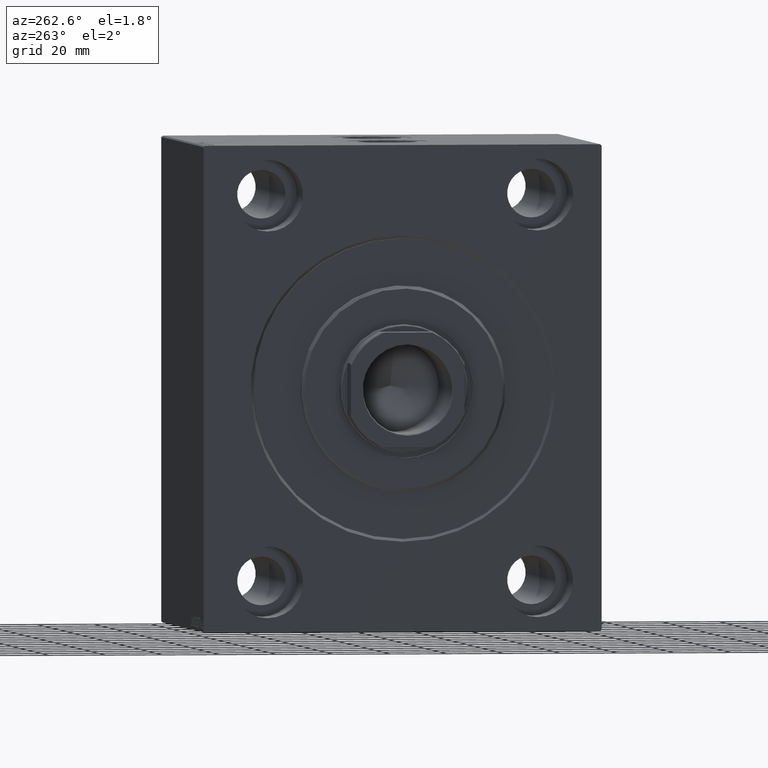
[diagram: clean part render]
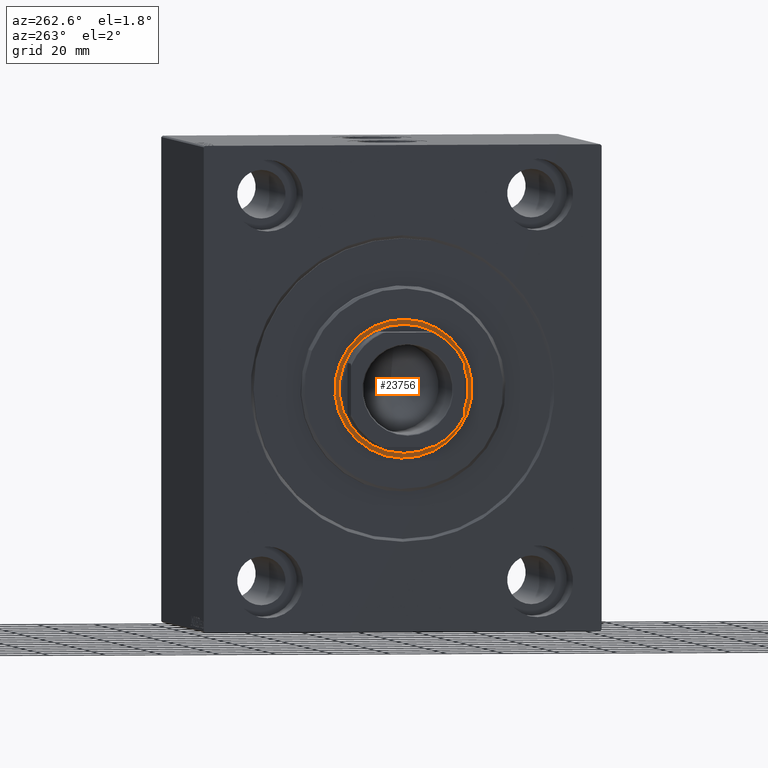
[diagram: same view with one face highlighted and labeled with its STEP entity id]
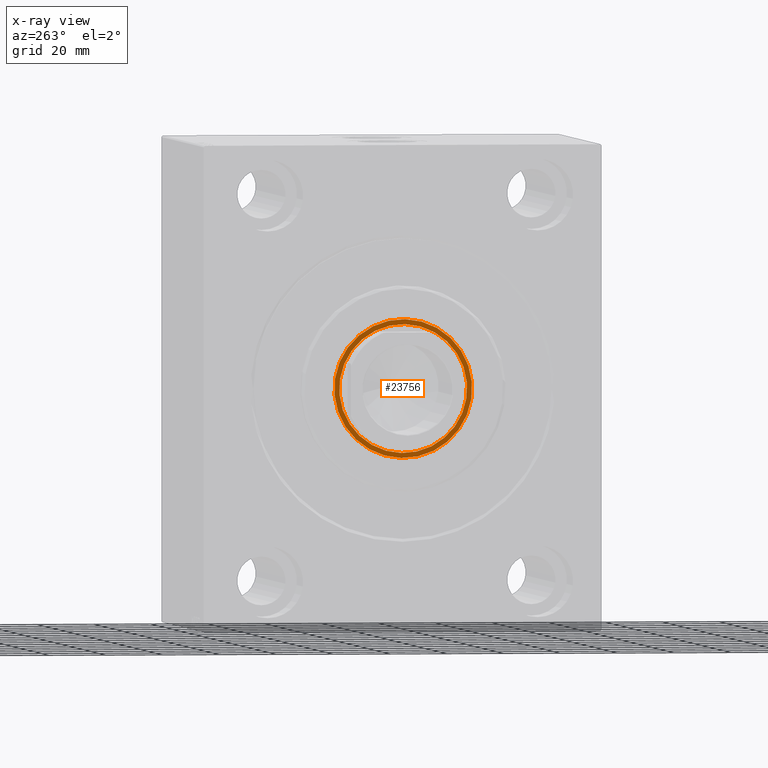
[diagram: x-ray of the same camera — body ghosted, the highlighted face saturated]
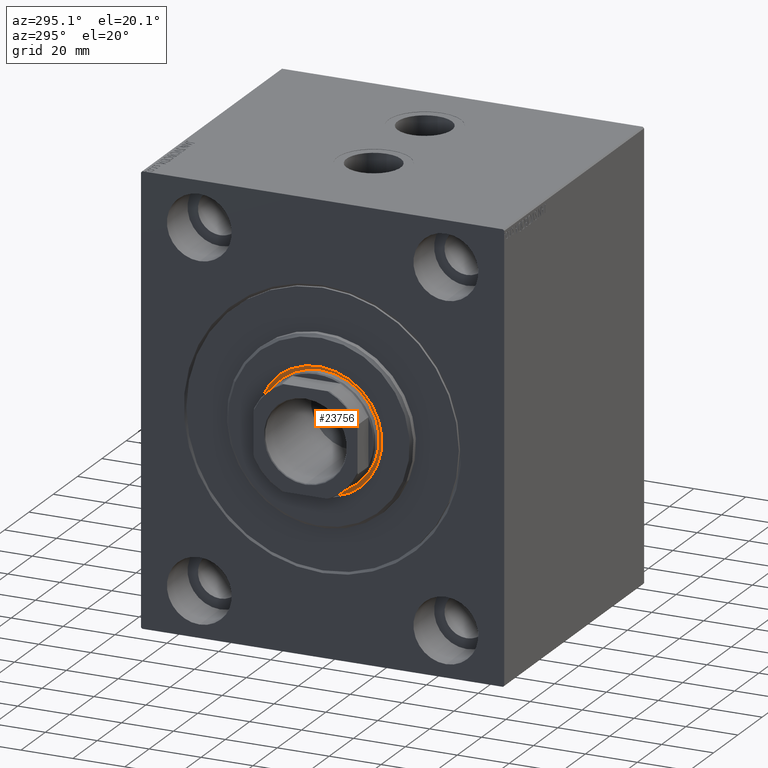
[diagram: same view with one face highlighted and labeled with its STEP entity id]
A machine part, auxiliary view. The second image highlights one B-rep face of the part: STEP entity #23756.
The next image is the same camera in x-ray: the body ghosted, the highlighted face saturated — about 0% of this face is hidden behind the body in this view.
A second angle (auxiliary view) of the same face is appended — the face is thin or edge-on in the first view.
In plain terms, the highlighted planar face has unit normal (-1, 0, 0).
Its self-contained STEP definition (entity closure, byte-faithful):
#1608 = EDGE_LOOP ( 'NONE', ( #37405, #13585 ) ) ;
#2707 = CARTESIAN_POINT ( 'NONE',  ( 1.500000000000001332, 0.000000000000000000, 0.000000000000000000 ) ) ;
#3841 = DIRECTION ( 'NONE',  ( 0.000000000000000000, 0.000000000000000000, -1.000000000000000000 ) ) ;
#4712 = FACE_BOUND ( 'NONE', #1608, .T. ) ;
#5748 = AXIS2_PLACEMENT_3D ( 'NONE', #36339, #9185, #33440 ) ;
#7615 = CIRCLE ( 'NONE', #31057, 22.50000000000000355 ) ;
#7846 = AXIS2_PLACEMENT_3D ( 'NONE', #31861, #24501, #3841 ) ;
#8583 = DIRECTION ( 'NONE',  ( 1.000000000000000000, 0.000000000000000000, 0.000000000000000000 ) ) ;
#8696 = VERTEX_POINT ( 'NONE', #37498 ) ;
#9185 = DIRECTION ( 'NONE',  ( 1.000000000000000000, 0.000000000000000000, 0.000000000000000000 ) ) ;
#12160 = CIRCLE ( 'NONE', #5748, 24.25000000000000000 ) ;
#12231 = EDGE_CURVE ( 'NONE', #19408, #23374, #19720, .T. ) ;
#13585 = ORIENTED_EDGE ( 'NONE', *, *, #12231, .F. ) ;
#13704 = CARTESIAN_POINT ( 'NONE',  ( 1.500000000000001332, 0.000000000000000000, -22.50000000000000355 ) ) ;
#13950 = DIRECTION ( 'NONE',  ( 0.000000000000000000, 0.000000000000000000, -1.000000000000000000 ) ) ;
#14085 = PLANE ( 'NONE',  #7846 ) ;
#15427 = ORIENTED_EDGE ( 'NONE', *, *, #27583, .T. ) ;
#15468 = AXIS2_PLACEMENT_3D ( 'NONE', #29625, #35256, #35031 ) ;
#18291 = FACE_OUTER_BOUND ( 'NONE', #34032, .T. ) ;
#19408 = VERTEX_POINT ( 'NONE', #40769 ) ;
#19720 = CIRCLE ( 'NONE', #15468, 22.50000000000000355 ) ;
#19908 = VERTEX_POINT ( 'NONE', #27264 ) ;
#22394 = CIRCLE ( 'NONE', #33048, 24.25000000000000000 ) ;
#23152 = DIRECTION ( 'NONE',  ( 0.000000000000000000, 0.000000000000000000, -1.000000000000000000 ) ) ;
#23374 = VERTEX_POINT ( 'NONE', #13704 ) ;
#23756 = ADVANCED_FACE ( 'NONE', ( #4712, #18291 ), #14085, .T. ) ;
#24501 = DIRECTION ( 'NONE',  ( 1.000000000000000000, 0.000000000000000000, 0.000000000000000000 ) ) ;
#25696 = ORIENTED_EDGE ( 'NONE', *, *, #26006, .T. ) ;
#26006 = EDGE_CURVE ( 'NONE', #19908, #8696, #12160, .T. ) ;
#27264 = CARTESIAN_POINT ( 'NONE',  ( 1.500000000000000000, 2.969768487932331287E-15, -24.25000000000000000 ) ) ;
#27583 = EDGE_CURVE ( 'NONE', #8696, #19908, #22394, .T. ) ;
#29625 = CARTESIAN_POINT ( 'NONE',  ( 1.500000000000001332, 0.000000000000000000, 0.000000000000000000 ) ) ;
#31057 = AXIS2_PLACEMENT_3D ( 'NONE', #2707, #8583, #23152 ) ;
#31508 = CARTESIAN_POINT ( 'NONE',  ( 1.500000000000000000, 0.000000000000000000, 0.000000000000000000 ) ) ;
#31861 = CARTESIAN_POINT ( 'NONE',  ( 1.500000000000000000, 0.000000000000000000, 0.000000000000000000 ) ) ;
#32166 = EDGE_CURVE ( 'NONE', #23374, #19408, #7615, .T. ) ;
#33048 = AXIS2_PLACEMENT_3D ( 'NONE', #31508, #41725, #13950 ) ;
#33440 = DIRECTION ( 'NONE',  ( 0.000000000000000000, 0.000000000000000000, -1.000000000000000000 ) ) ;
#34032 = EDGE_LOOP ( 'NONE', ( #15427, #25696 ) ) ;
#35031 = DIRECTION ( 'NONE',  ( 0.000000000000000000, 0.000000000000000000, -1.000000000000000000 ) ) ;
#35256 = DIRECTION ( 'NONE',  ( 1.000000000000000000, 0.000000000000000000, 0.000000000000000000 ) ) ;
#36339 = CARTESIAN_POINT ( 'NONE',  ( 1.500000000000000000, 0.000000000000000000, 0.000000000000000000 ) ) ;
#37405 = ORIENTED_EDGE ( 'NONE', *, *, #32166, .F. ) ;
#37498 = CARTESIAN_POINT ( 'NONE',  ( 1.500000000000000000, 0.000000000000000000, 24.25000000000000000 ) ) ;
#40769 = CARTESIAN_POINT ( 'NONE',  ( 1.500000000000001332, 2.755455298081545172E-15, 22.50000000000000355 ) ) ;
#41725 = DIRECTION ( 'NONE',  ( 1.000000000000000000, 0.000000000000000000, 0.000000000000000000 ) ) ;